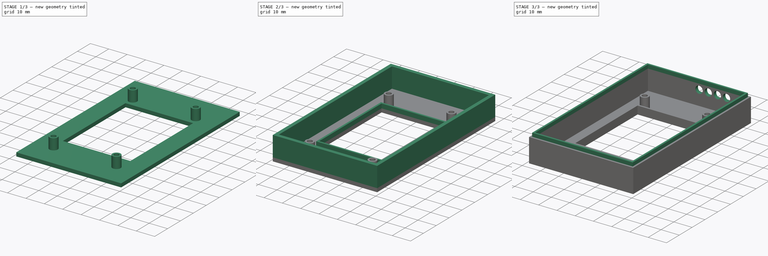
[diagram: build sequence overview — one tinted view per stage of 3, left to right]
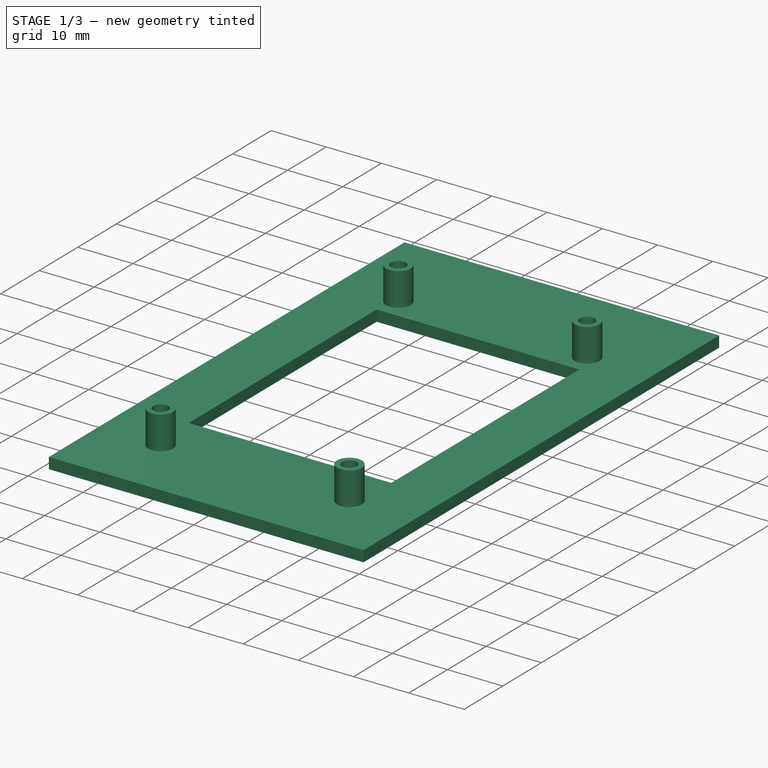
[diagram: stage 1 of 3 — iso view after this stage's code; geometry added in this stage tinted green]
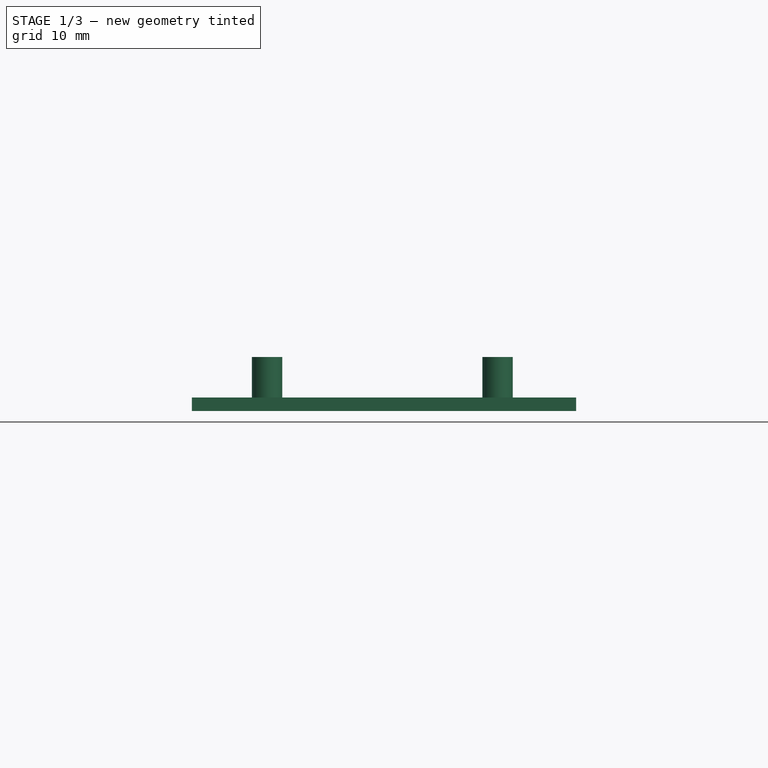
[diagram: stage 1 of 3 — front view after this stage's code; geometry added in this stage tinted green]
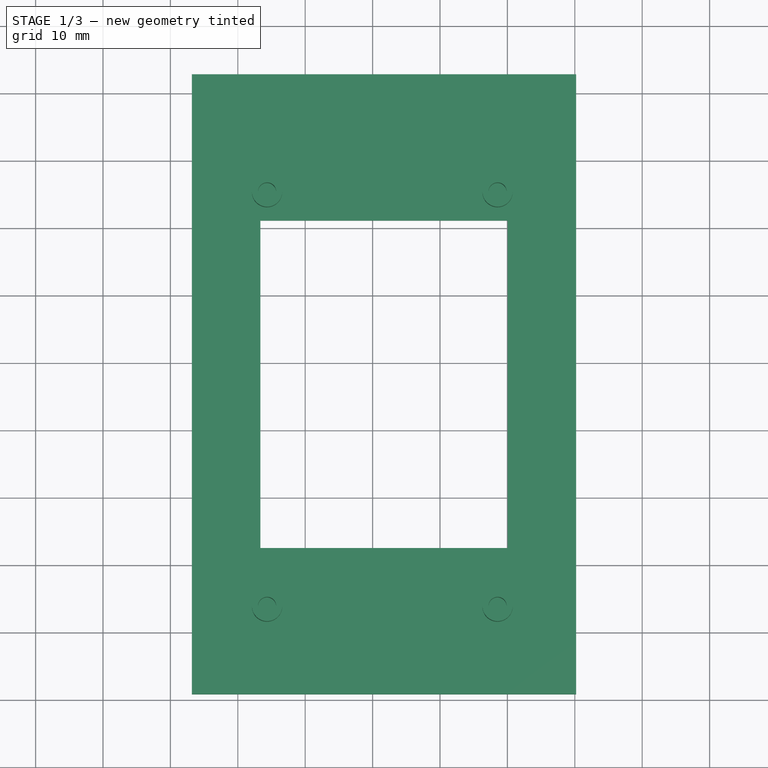
[diagram: stage 1 of 3 — top view after this stage's code; geometry added in this stage tinted green]
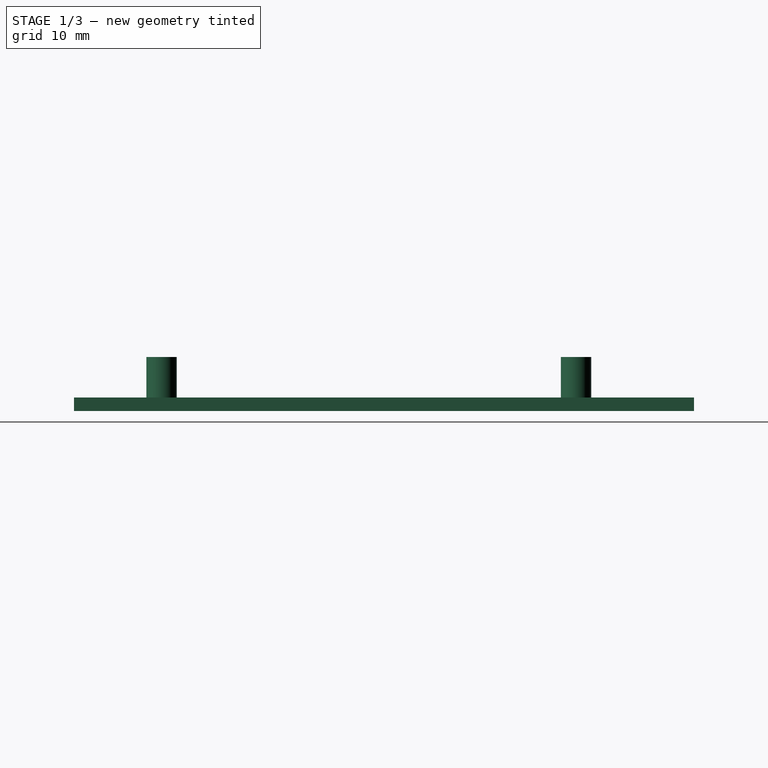
[diagram: stage 1 of 3 — right view after this stage's code; geometry added in this stage tinted green]
FCSTD DOCUMENT  (FreeCAD 0.18R16158 (Git))
Label: weather_station_front
License: All rights reserved
LicenseURL: http://en.wikipedia.org/wiki/All_rights_reserved
objects: Sketcher::SketchObject×6, PartDesign::Pad×5, PartDesign::Pocket×1, PartDesign::Body×1
note: 19 computed .brp shape members not serialized (recipe doc carries the construction recipe); baked Part::Feature solids carry a one-line shape summary decoded from their .brp

FEATURE [Sketcher::SketchObject] Sketch
  MapMode = 5
  Support = -> [XY_Plane]
  sketch-geometry (12):
    g0: LineSegment StartX=-6.80906 StartY=22.848 StartZ=0 EndX=50.1909 EndY=22.848 EndZ=0
    g1: LineSegment StartX=50.1909 StartY=22.848 StartZ=0 EndX=50.1909 EndY=-69.152 EndZ=0
    g2: LineSegment StartX=50.1909 StartY=-69.152 StartZ=0 EndX=-6.80906 EndY=-69.152 EndZ=0
    g3: LineSegment StartX=-6.80906 StartY=-69.152 StartZ=0 EndX=-6.80906 EndY=22.848 EndZ=0
    g4: LineSegment StartX=3.34094 StartY=1.14805 StartZ=0 EndX=40.0409 EndY=1.14805 EndZ=0
    g5: LineSegment StartX=40.0409 StartY=1.14805 StartZ=0 EndX=40.0409 EndY=-47.452 EndZ=0
    g6: LineSegment StartX=40.0409 StartY=-47.452 StartZ=0 EndX=3.34094 EndY=-47.452 EndZ=0
    g7: LineSegment StartX=3.34094 StartY=-47.452 StartZ=0 EndX=3.34094 EndY=1.14805 EndZ=0
    g8: LineSegment [constr] StartX=3.34094 StartY=1.14805 StartZ=0 EndX=-6.80906 EndY=22.848 EndZ=0
    g9: LineSegment [constr] StartX=3.34094 StartY=-47.452 StartZ=0 EndX=-6.80906 EndY=-69.152 EndZ=0
    g10: LineSegment [constr] StartX=40.0409 StartY=-47.452 StartZ=0 EndX=50.1909 EndY=-69.152 EndZ=0
    g11: LineSegment [constr] StartX=40.0409 StartY=1.14805 StartZ=0 EndX=50.1909 EndY=22.848 EndZ=0
  constraints (30):
    c: Coincident(g0,g1)
    c: Coincident(g1,g2)
    c: Coincident(g2,g3)
    c: Coincident(g3,g0)
    c: Horizontal(g0)
    c: Horizontal(g2)
    c: Vertical(g1)
    c: Vertical(g3)
    c: DistanceX(g0,g0) = 57
    c: DistanceY(g1,g1) = 92
    c: Coincident(g4,g5)
    c: Coincident(g5,g6)
    c: Coincident(g6,g7)
    c: Coincident(g7,g4)
    c: Horizontal(g4)
    c: Horizontal(g6)
    c: Vertical(g5)
    c: Vertical(g7)
    c: DistanceX(g4,g4) = 36.7
    c: DistanceY(g7,g7) = 48.6
    c: Coincident(g8,g4)
    c: Coincident(g8,g0)
    c: Coincident(g9,g6)
    c: Coincident(g9,g2)
    c: Coincident(g10,g5)
    c: Coincident(g10,g1)
    c: Coincident(g11,g4)
    c: Coincident(g11,g0)
    c: Equal(g8,g9)
    c: Equal(g10,g9)
FEATURE [PartDesign::Pad] Pad
  Length = 2
  Length2 = 100
  Profile = -> Sketch
  Type = 0
FEATURE [Sketcher::SketchObject] Sketch001
  ExternalGeometry = -> [Pad]
  MapMode = 5
  Placement = pos=(0,0,2) rot=(0,0,1;0rad)
  Support = -> [Pad]
  sketch-geometry (12):
    g0: Circle CenterX=4.34094 CenterY=5.34805 CenterZ=0 NormalX=0 NormalY=0 NormalZ=1 AngleXU=0 Radius=1.35
    g1: Circle CenterX=38.5409 CenterY=5.34805 CenterZ=0 NormalX=0 NormalY=0 NormalZ=1 AngleXU=0 Radius=1.35
    g2: Circle CenterX=4.34094 CenterY=-56.152 CenterZ=0 NormalX=0 NormalY=0 NormalZ=1 AngleXU=0 Radius=1.35
    g3: Circle CenterX=4.34094 CenterY=5.34805 CenterZ=0 NormalX=0 NormalY=0 NormalZ=1 AngleXU=0 Radius=2.25
    g4: Circle CenterX=38.5409 CenterY=5.34805 CenterZ=0 NormalX=0 NormalY=0 NormalZ=1 AngleXU=0 Radius=2.25
    g5: Circle CenterX=4.34094 CenterY=-56.152 CenterZ=0 NormalX=0 NormalY=0 NormalZ=1 AngleXU=0 Radius=2.25
    g6: LineSegment [constr] StartX=38.5409 StartY=5.34805 StartZ=0 EndX=4.34094 EndY=5.34805 EndZ=0
    g7: LineSegment [constr] StartX=4.34094 StartY=5.34805 StartZ=0 EndX=4.34094 EndY=-56.152 EndZ=0
    g8: LineSegment [constr] StartX=4.34094 StartY=-56.152 StartZ=0 EndX=38.5409 EndY=-56.152 EndZ=0
    g9: LineSegment [constr] StartX=38.5409 StartY=-56.152 StartZ=0 EndX=38.5409 EndY=5.34805 EndZ=0
    g10: Circle CenterX=38.5409 CenterY=-56.152 CenterZ=0 NormalX=0 NormalY=0 NormalZ=1 AngleXU=0 Radius=2.25
    g11: Circle CenterX=38.5409 CenterY=-56.152 CenterZ=0 NormalX=0 NormalY=0 NormalZ=1 AngleXU=0 Radius=1.35
  constraints (28):
    c: Diameter(g2) = 2.7
    c: Diameter(g0) = 2.7
    c: Diameter(g1) = 2.7
    c: Coincident(g3,g0)
    c: Coincident(g4,g1)
    c: Coincident(g5,g2)
    c: Diameter(g5) = 4.5
    c: Diameter(g3) = 4.5
    c: Diameter(g4) = 4.5
    c: Coincident(g6,g7)
    c: Coincident(g7,g8)
    c: Coincident(g8,g9)
    c: Coincident(g9,g6)
    c: Horizontal(g6)
    c: Horizontal(g8)
    c: Vertical(g7)
    c: Vertical(g9)
    c: Coincident(g6,g1)
    c: Coincident(g7,g2)
    c: Coincident(g6,g0)
    c: DistanceX(g6,g6) = 34.2
    c: DistanceY(g-6,g1) = 4.2
    c: DistanceX(g1,g-6) = 1.5
    c: DistanceY(g2,g0) = 61.5
    c: Coincident(g10,g8)
    c: Coincident(g11,g10)
    c: Diameter(g11) = 2.7
    c: Diameter(g10) = 4.5
FEATURE [PartDesign::Pad] Pad001
  BaseFeature = -> Pad
  Length = 6
  Length2 = 100
  Profile = -> Sketch001
  Type = 0
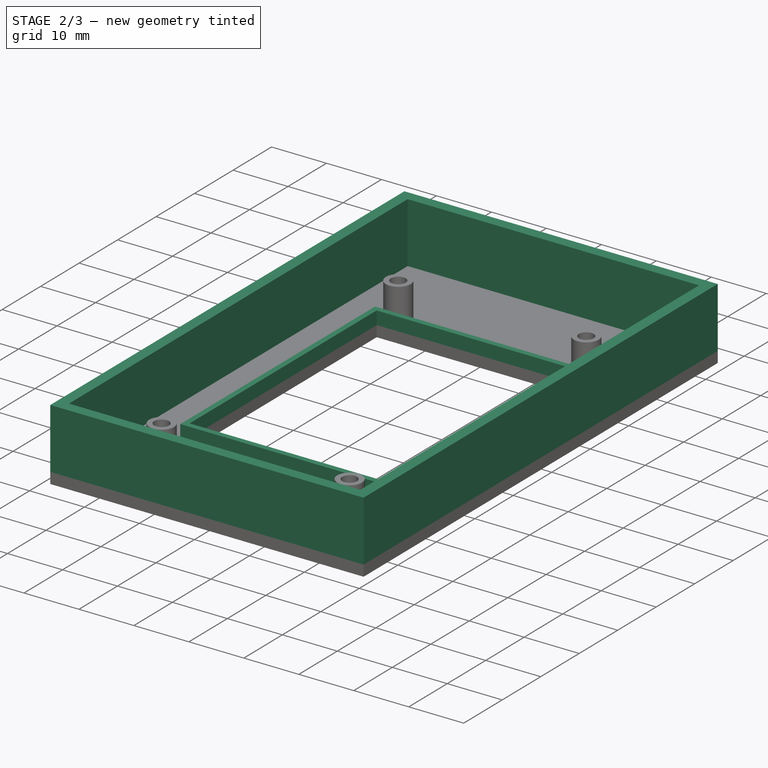
[diagram: stage 2 of 3 — iso view after this stage's code; geometry added in this stage tinted green]
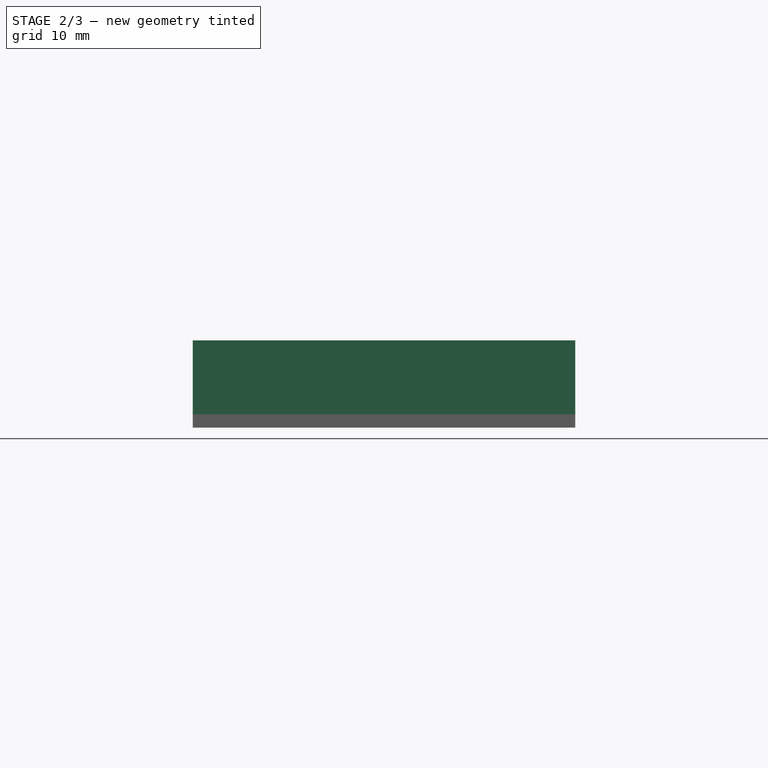
[diagram: stage 2 of 3 — front view after this stage's code; geometry added in this stage tinted green]
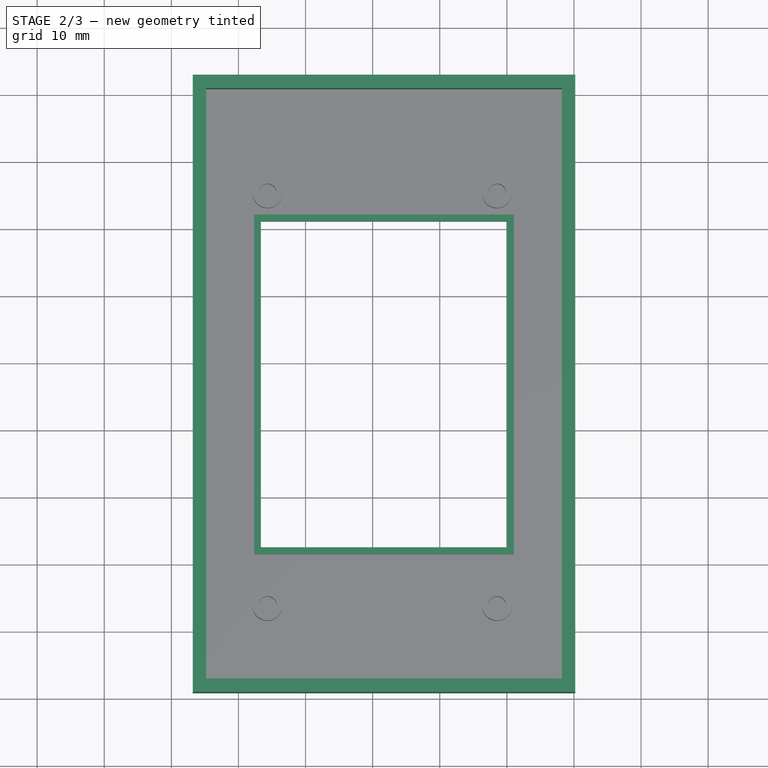
[diagram: stage 2 of 3 — top view after this stage's code; geometry added in this stage tinted green]
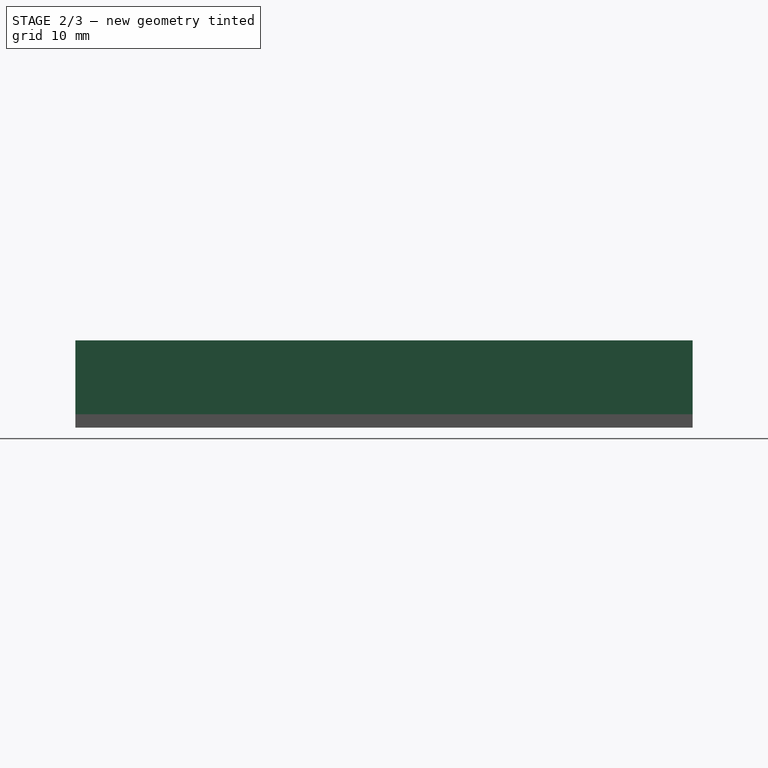
[diagram: stage 2 of 3 — right view after this stage's code; geometry added in this stage tinted green]
FEATURE [Sketcher::SketchObject] Sketch002
  ExternalGeometry = -> [Pad001]
  MapMode = 5
  Placement = pos=(0,0,2) rot=(0,0,1;0rad)
  Support = -> [Pad001]
  sketch-geometry (8):
    g0: LineSegment StartX=-4.80906 StartY=20.848 StartZ=0 EndX=48.1909 EndY=20.848 EndZ=0
    g1: LineSegment StartX=48.1909 StartY=20.848 StartZ=0 EndX=48.1909 EndY=-67.152 EndZ=0
    g2: LineSegment StartX=48.1909 StartY=-67.152 StartZ=0 EndX=-4.80906 EndY=-67.152 EndZ=0
    g3: LineSegment StartX=-4.80906 StartY=-67.152 StartZ=0 EndX=-4.80906 EndY=20.848 EndZ=0
    g4: LineSegment StartX=-6.80906 StartY=22.848 StartZ=0 EndX=50.1909 EndY=22.848 EndZ=0
    g5: LineSegment StartX=50.1909 StartY=22.848 StartZ=0 EndX=50.1909 EndY=-69.152 EndZ=0
    g6: LineSegment StartX=50.1909 StartY=-69.152 StartZ=0 EndX=-6.80906 EndY=-69.152 EndZ=0
    g7: LineSegment StartX=-6.80906 StartY=-69.152 StartZ=0 EndX=-6.80906 EndY=22.848 EndZ=0
  constraints (22):
    c: Coincident(g0,g1)
    c: Coincident(g1,g2)
    c: Coincident(g2,g3)
    c: Coincident(g3,g0)
    c: Horizontal(g0)
    c: Horizontal(g2)
    c: Vertical(g1)
    c: Vertical(g3)
    c: DistanceY(g0,g-6) = 2
    c: DistanceY(g-6,g1) = 2
    c: DistanceX(g-4,g0) = 2
    c: DistanceX(g1,g-6) = 2
    c: Coincident(g4,g5)
    c: Coincident(g5,g6)
    c: Coincident(g6,g7)
    c: Coincident(g7,g4)
    c: Horizontal(g4)
    c: Horizontal(g6)
    c: Vertical(g5)
    c: Vertical(g7)
    c: Coincident(g4,g-4)
    c: Coincident(g5,g-6)
FEATURE [PartDesign::Pad] Pad002
  BaseFeature = -> Pad001
  Length = 11
  Length2 = 100
  Profile = -> Sketch002
  Type = 0
FEATURE [Sketcher::SketchObject] Sketch007
  ExternalGeometry = -> [Pad002]
  MapMode = 5
  Placement = pos=(0,0,2) rot=(0,0,1;0rad)
  Support = -> [Pad002]
  sketch-geometry (8):
    g0: LineSegment StartX=2.34094 StartY=2.14805 StartZ=0 EndX=41.0409 EndY=2.14805 EndZ=0
    g1: LineSegment StartX=41.0409 StartY=2.14805 StartZ=0 EndX=41.0409 EndY=-48.452 EndZ=0
    g2: LineSegment StartX=41.0409 StartY=-48.452 StartZ=0 EndX=2.34094 EndY=-48.452 EndZ=0
    g3: LineSegment StartX=2.34094 StartY=-48.452 StartZ=0 EndX=2.34094 EndY=2.14805 EndZ=0
    g4: LineSegment StartX=3.34094 StartY=1.14805 StartZ=0 EndX=40.0409 EndY=1.14805 EndZ=0
    g5: LineSegment StartX=40.0409 StartY=1.14805 StartZ=0 EndX=40.0409 EndY=-47.452 EndZ=0
    g6: LineSegment StartX=40.0409 StartY=-47.452 StartZ=0 EndX=3.34094 EndY=-47.452 EndZ=0
    g7: LineSegment StartX=3.34094 StartY=-47.452 StartZ=0 EndX=3.34094 EndY=1.14805 EndZ=0
  constraints (22):
    c: Coincident(g0,g1)
    c: Coincident(g1,g2)
    c: Coincident(g2,g3)
    c: Coincident(g3,g0)
    c: Horizontal(g0)
    c: Horizontal(g2)
    c: Vertical(g1)
    c: Vertical(g3)
    c: Coincident(g4,g5)
    c: Coincident(g5,g6)
    c: Coincident(g6,g7)
    c: Coincident(g7,g4)
    c: Horizontal(g4)
    c: Horizontal(g6)
    c: Vertical(g5)
    c: Vertical(g7)
    c: Coincident(g4,g-6)
    c: Coincident(g5,g-5)
    c: DistanceX(g4,g0) = 1
    c: DistanceX(g2,g6) = 1
    c: DistanceY(g4,g0) = 1
    c: DistanceY(g1,g5) = 1
FEATURE [PartDesign::Pad] Pad005
  BaseFeature = -> Pad002
  Length = 2.4
  Length2 = 100
  Profile = -> Sketch007
  Type = 0
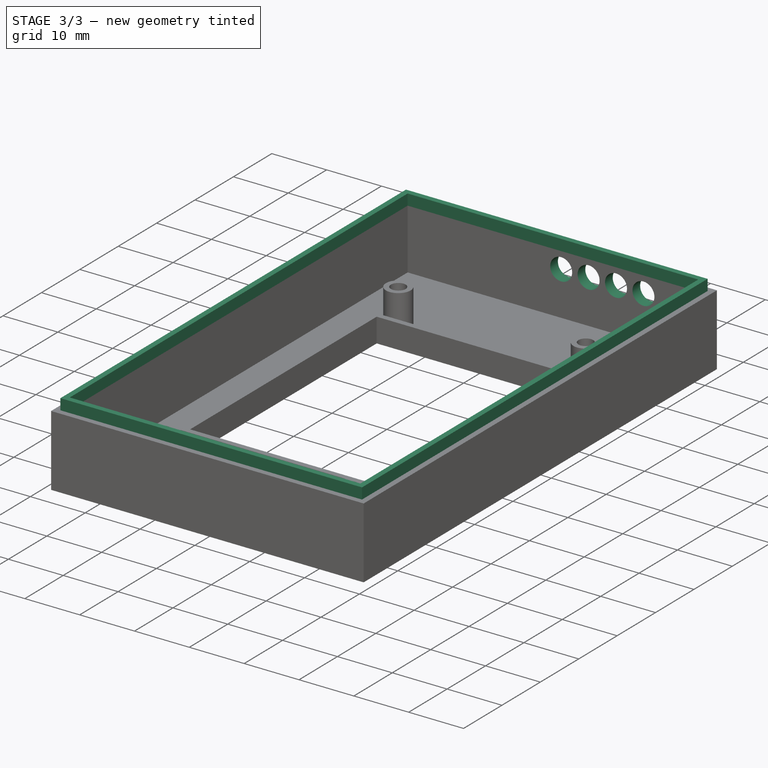
[diagram: stage 3 of 3 — iso view after this stage's code; geometry added in this stage tinted green]
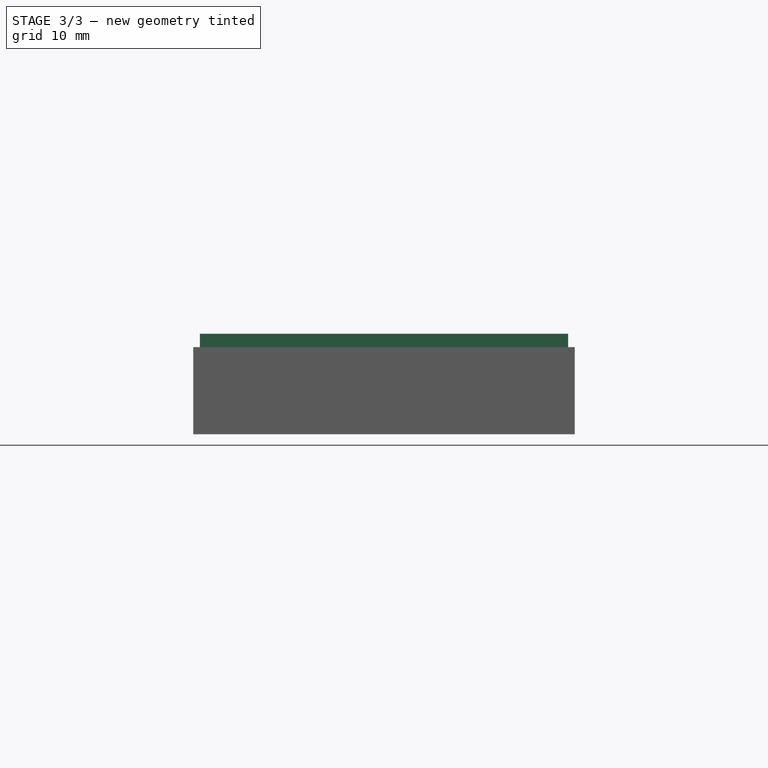
[diagram: stage 3 of 3 — front view after this stage's code; geometry added in this stage tinted green]
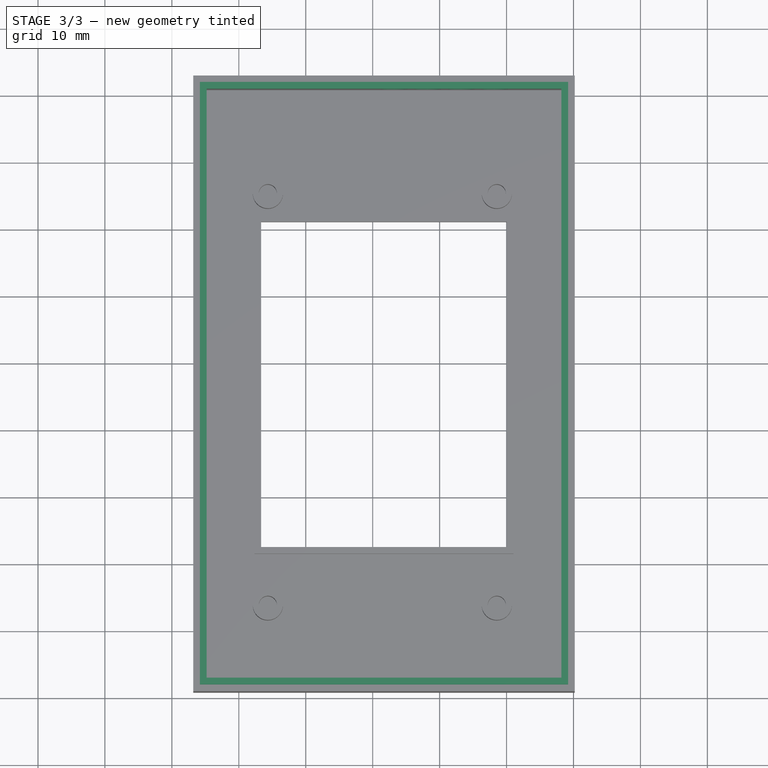
[diagram: stage 3 of 3 — top view after this stage's code; geometry added in this stage tinted green]
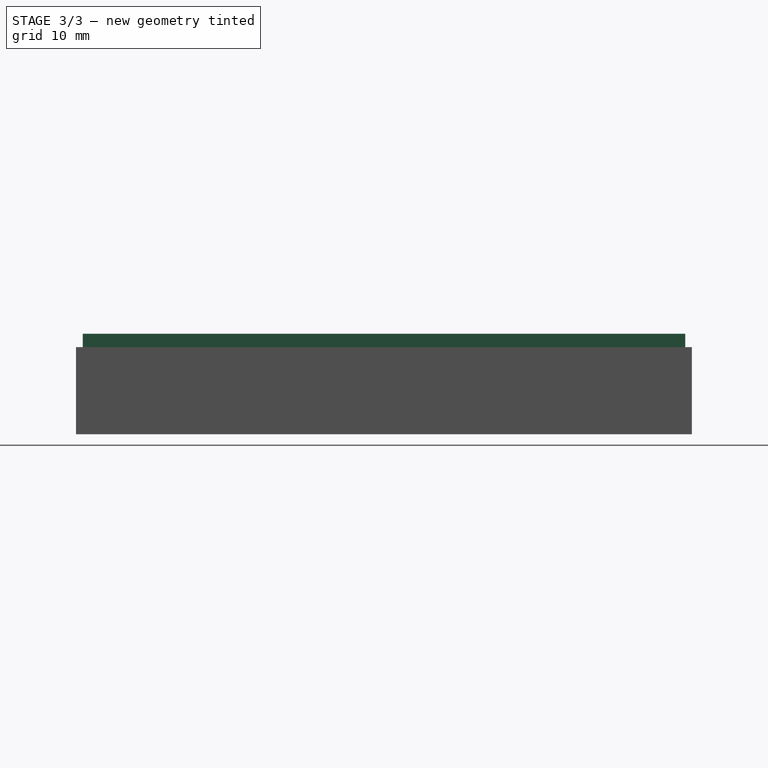
[diagram: stage 3 of 3 — right view after this stage's code; geometry added in this stage tinted green]
FEATURE [Sketcher::SketchObject] Sketch008
  ExternalGeometry = -> [Pad002]
  MapMode = 5
  Placement = pos=(0,0,13) rot=(0,0,1;0rad)
  Support = -> [Pad002]
  sketch-geometry (8):
    g0: LineSegment StartX=-5.80906 StartY=21.848 StartZ=0 EndX=49.1909 EndY=21.848 EndZ=0
    g1: LineSegment StartX=49.1909 StartY=21.848 StartZ=0 EndX=49.1909 EndY=-68.152 EndZ=0
    g2: LineSegment StartX=49.1909 StartY=-68.152 StartZ=0 EndX=-5.80906 EndY=-68.152 EndZ=0
    g3: LineSegment StartX=-5.80906 StartY=-68.152 StartZ=0 EndX=-5.80906 EndY=21.848 EndZ=0
    g4: LineSegment StartX=-4.80906 StartY=20.848 StartZ=0 EndX=48.1909 EndY=20.848 EndZ=0
    g5: LineSegment StartX=48.1909 StartY=20.848 StartZ=0 EndX=48.1909 EndY=-67.152 EndZ=0
    g6: LineSegment StartX=48.1909 StartY=-67.152 StartZ=0 EndX=-4.80906 EndY=-67.152 EndZ=0
    g7: LineSegment StartX=-4.80906 StartY=-67.152 StartZ=0 EndX=-4.80906 EndY=20.848 EndZ=0
  constraints (22):
    c: Coincident(g0,g1)
    c: Coincident(g1,g2)
    c: Coincident(g2,g3)
    c: Coincident(g3,g0)
    c: Horizontal(g0)
    c: Horizontal(g2)
    c: Vertical(g1)
    c: Vertical(g3)
    c: DistanceX(g-5,g0) = 1
    c: DistanceX(g0,g-4) = 1
    c: DistanceY(g-4,g0) = 1
    c: DistanceY(g1,g-6) = 1
    c: Coincident(g4,g5)
    c: Coincident(g5,g6)
    c: Coincident(g6,g7)
    c: Coincident(g7,g4)
    c: Horizontal(g4)
    c: Horizontal(g6)
    c: Vertical(g5)
    c: Vertical(g7)
    c: Coincident(g4,g-4)
    c: Coincident(g5,g-6)
FEATURE [PartDesign::Pad] Pad006
  BaseFeature = -> Pad005
  Length = 2
  Length2 = 100
  Profile = -> Sketch008
  Type = 0
FEATURE [Sketcher::SketchObject] Sketch009
  ExternalGeometry = -> [Pad006]
  MapMode = 5
  Placement = pos=(0,22.848,0) rot=(0,0.707107,0.707107;3.14159rad)
  Support = -> [Pad006]
  sketch-geometry (4):
    g0: Circle CenterX=-38.1909 CenterY=10 CenterZ=0 NormalX=0 NormalY=0 NormalZ=1 AngleXU=0 Radius=2
    g1: Circle CenterX=-33.1909 CenterY=10 CenterZ=0 NormalX=0 NormalY=0 NormalZ=1 AngleXU=0 Radius=2
    g2: Circle CenterX=-28.1909 CenterY=10 CenterZ=0 NormalX=0 NormalY=0 NormalZ=1 AngleXU=0 Radius=2
    g3: Circle CenterX=-23.1909 CenterY=10 CenterZ=0 NormalX=0 NormalY=0 NormalZ=1 AngleXU=0 Radius=2
  constraints (12):
    c: Diameter(g3) = 4
    c: Diameter(g2) = 4
    c: Diameter(g1) = 4
    c: Diameter(g0) = 4
    c: DistanceX(g-3,g3) = 27
    c: DistanceX(g-3,g2) = 22
    c: DistanceX(g-3,g1) = 17
    c: DistanceX(g-3,g0) = 12
    c: DistanceY(g-4,g0) = 10
    c: DistanceY(g-4,g1) = 10
    c: DistanceY(g-4,g2) = 10
    c: DistanceY(g-4,g3) = 10
FEATURE [PartDesign::Pocket] Pocket
  BaseFeature = -> Pad006
  Length = 5
  Length2 = 100
  Profile = -> Sketch009
  Type = 0
FEATURE [PartDesign::Body] Body
  Group = -> [Sketch,Pad,Sketch001,Pad001,Sketch002,Pad002,Sketch007,Pad005,Sketch008,Pad006,Sketch009,Pocket]
  Origin = -> Origin
  Tip = -> Pocket
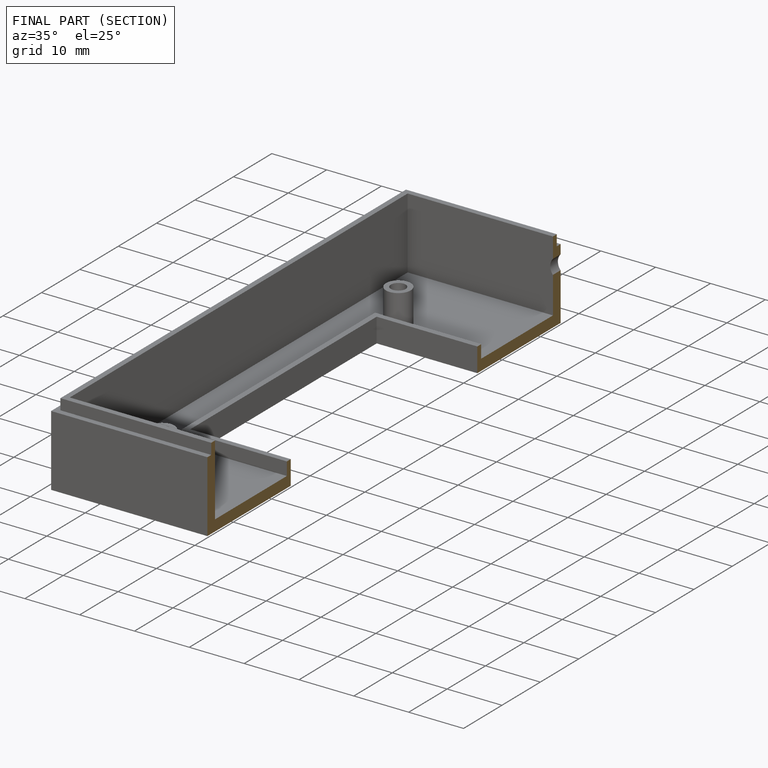
[diagram: finished part — half-section view (interior)]
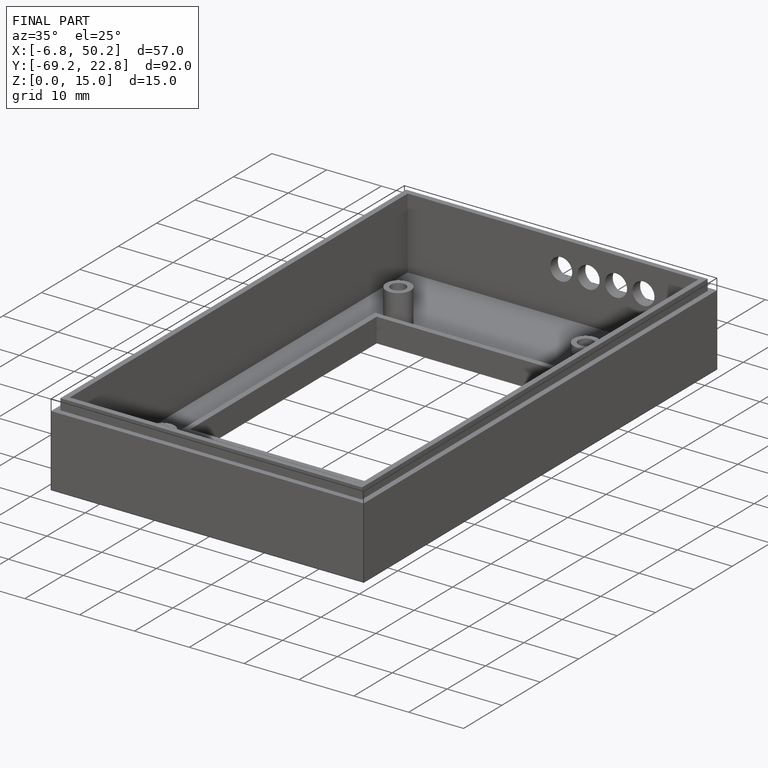
[diagram: finished part — iso view with bounding-box wireframe]
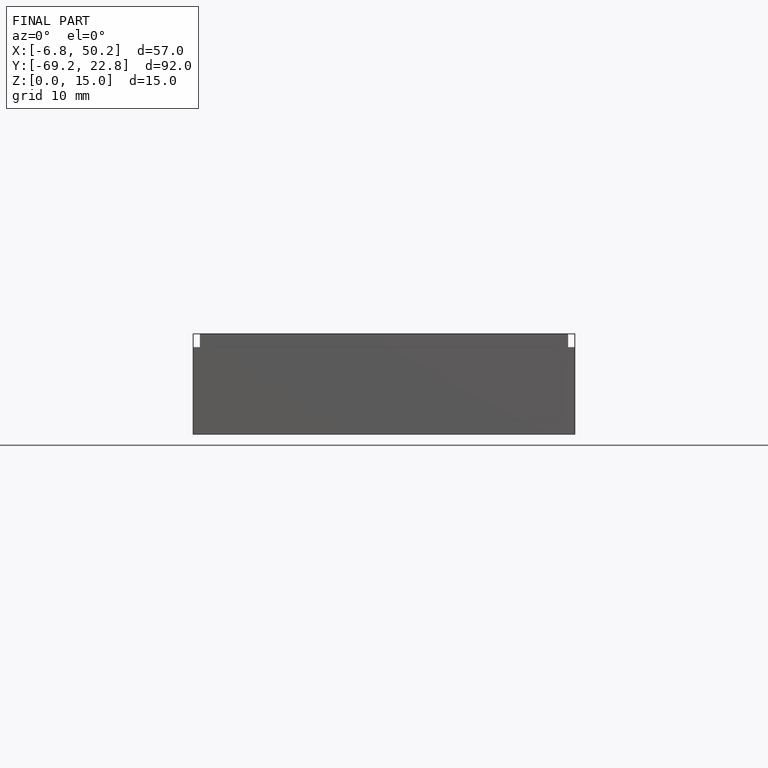
[diagram: finished part — front view with bounding-box wireframe]
